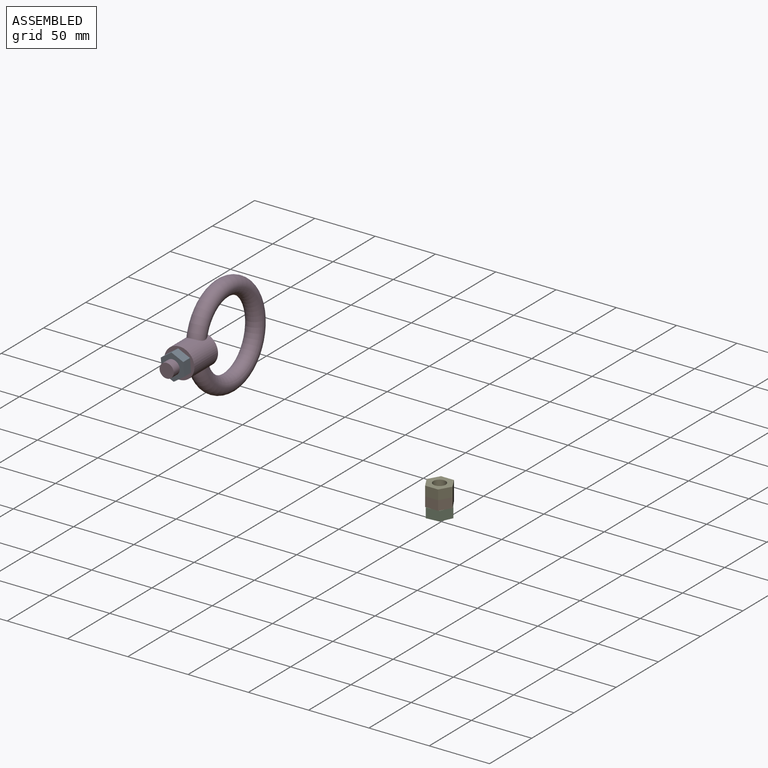
[diagram: assembled view]
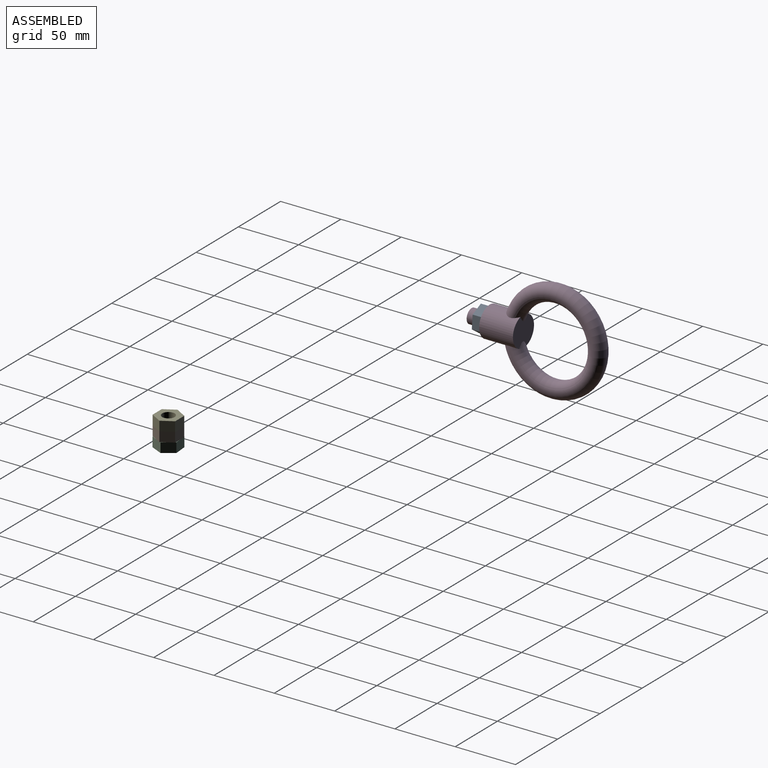
[diagram: assembled view, second angle]
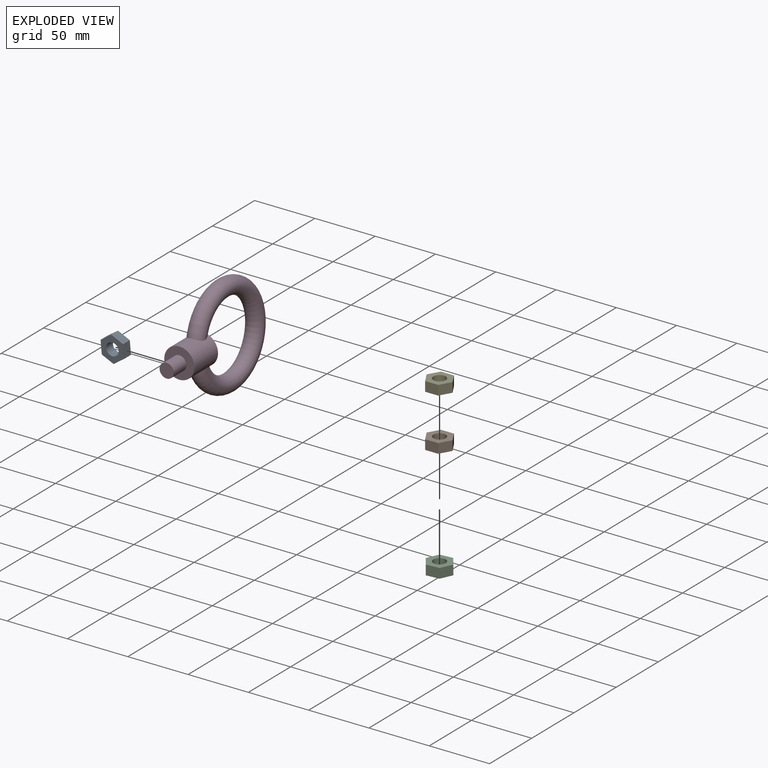
[diagram: exploded view]
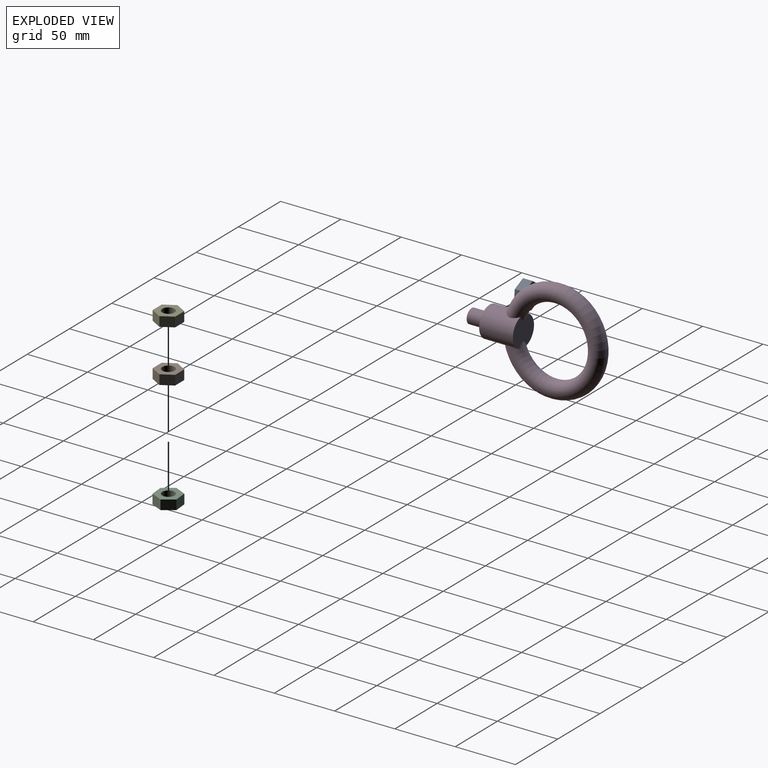
[diagram: exploded view, second angle]
ASSEMBLY  parts=5 mates=4
PART A: 9 faces, bbox 19.6x21.5x8 mm
  f0: plane 8.83x8mm, normal (0.57,-0.82,0), area 86.4mm2, adj f1,f5,f6,f7
  f1: plane 10.75x8mm, normal (1,0.09,0), area 86.4mm2, adj f0,f2,f6,f7
  f2: plane 9.79x8mm, normal (0.42,0.91,0), area 86.4mm2, adj f1,f3,f6,f7
  f3: plane 8.83x8mm, normal (-0.57,0.82,0), area 86.4mm2, adj f2,f4,f6,f7
  f4: plane 10.75x8mm, normal (-1,-0.09,0), area 86.4mm2, adj f3,f5,f6,f7
  f5: plane 9.79x8mm, normal (-0.42,-0.91,0), area 86.4mm2, adj f0,f4,f6,f7
  f6: plane 21.51x19.58mm, normal (0,0,-1), area 219.5mm2, adj f0,f1,f2,f3,f4,f5,f8
  f7: plane 21.51x19.58mm, normal (0,0,1), area 219.5mm2, adj f0,f1,f2,f3,f4,f5,f8
  f8: cylinder r=5.15mm len=10.3mm, axis (0,0,1), area 258.9mm2, adj f6,f7
PART B: same geometry as A
PART C: same geometry as A
PART D: 6 faces, bbox 90.9x115.5x25 mm
  f0: cylinder r=12.5mm len=28mm, axis (0,-1,0), area 1878.7mm2, adj f1,f2,f5
  f1: plane 25x25mm, normal (0,1,0), area 381.5mm2, adj f0,f3
  f2: plane 25x23.51mm, normal (0,-1,0), area 434mm2, adj f0,f5
  f3: cylinder r=5.9mm len=15mm, axis (0,-1,0), area 556.1mm2, adj f1,f4
  f4: plane 11.8x11.8mm, normal (0,1,0), area 109.4mm2, adj f3
  f5: torus R=35mm, axis (0,0,1), area 8707.9mm2, adj f0,f2
PART E: same geometry as A
PLACE A rot(axis=(1,0,0),90deg) t=(82.01,42.95,-7.37)mm
PLACE B rot(axis=(0,0,-1),35.1deg) t=(352.01,-26.44,-3.37)mm
PLACE C rot(axis=(0,0,-1),149.9deg) t=(352.01,-26.44,-11.37)mm
PLACE D rot(axis=(-0.73,0,0.68),180deg) t=(82.01,105.95,-7.37)mm
PLACE E rot(axis=(0,0,-1),35.1deg) t=(352.01,-26.44,4.63)mm
MATE planar A.f8 <-> D.f0  axis (0,1,0) through (82.01,50.95,-7.37)mm
MATE planar C.f7 <-> B.f6  axis (0,0,1) through (347.48,-36.24,-11.37)mm
MATE cylindrical D.f3 <-> A.f8  axis (0,1,0) through (82.01,43.45,-7.37)mm
MATE fastened B.f8 <-> E.f8  axis (0,0,1) through (352.01,-26.44,-3.37)mm
